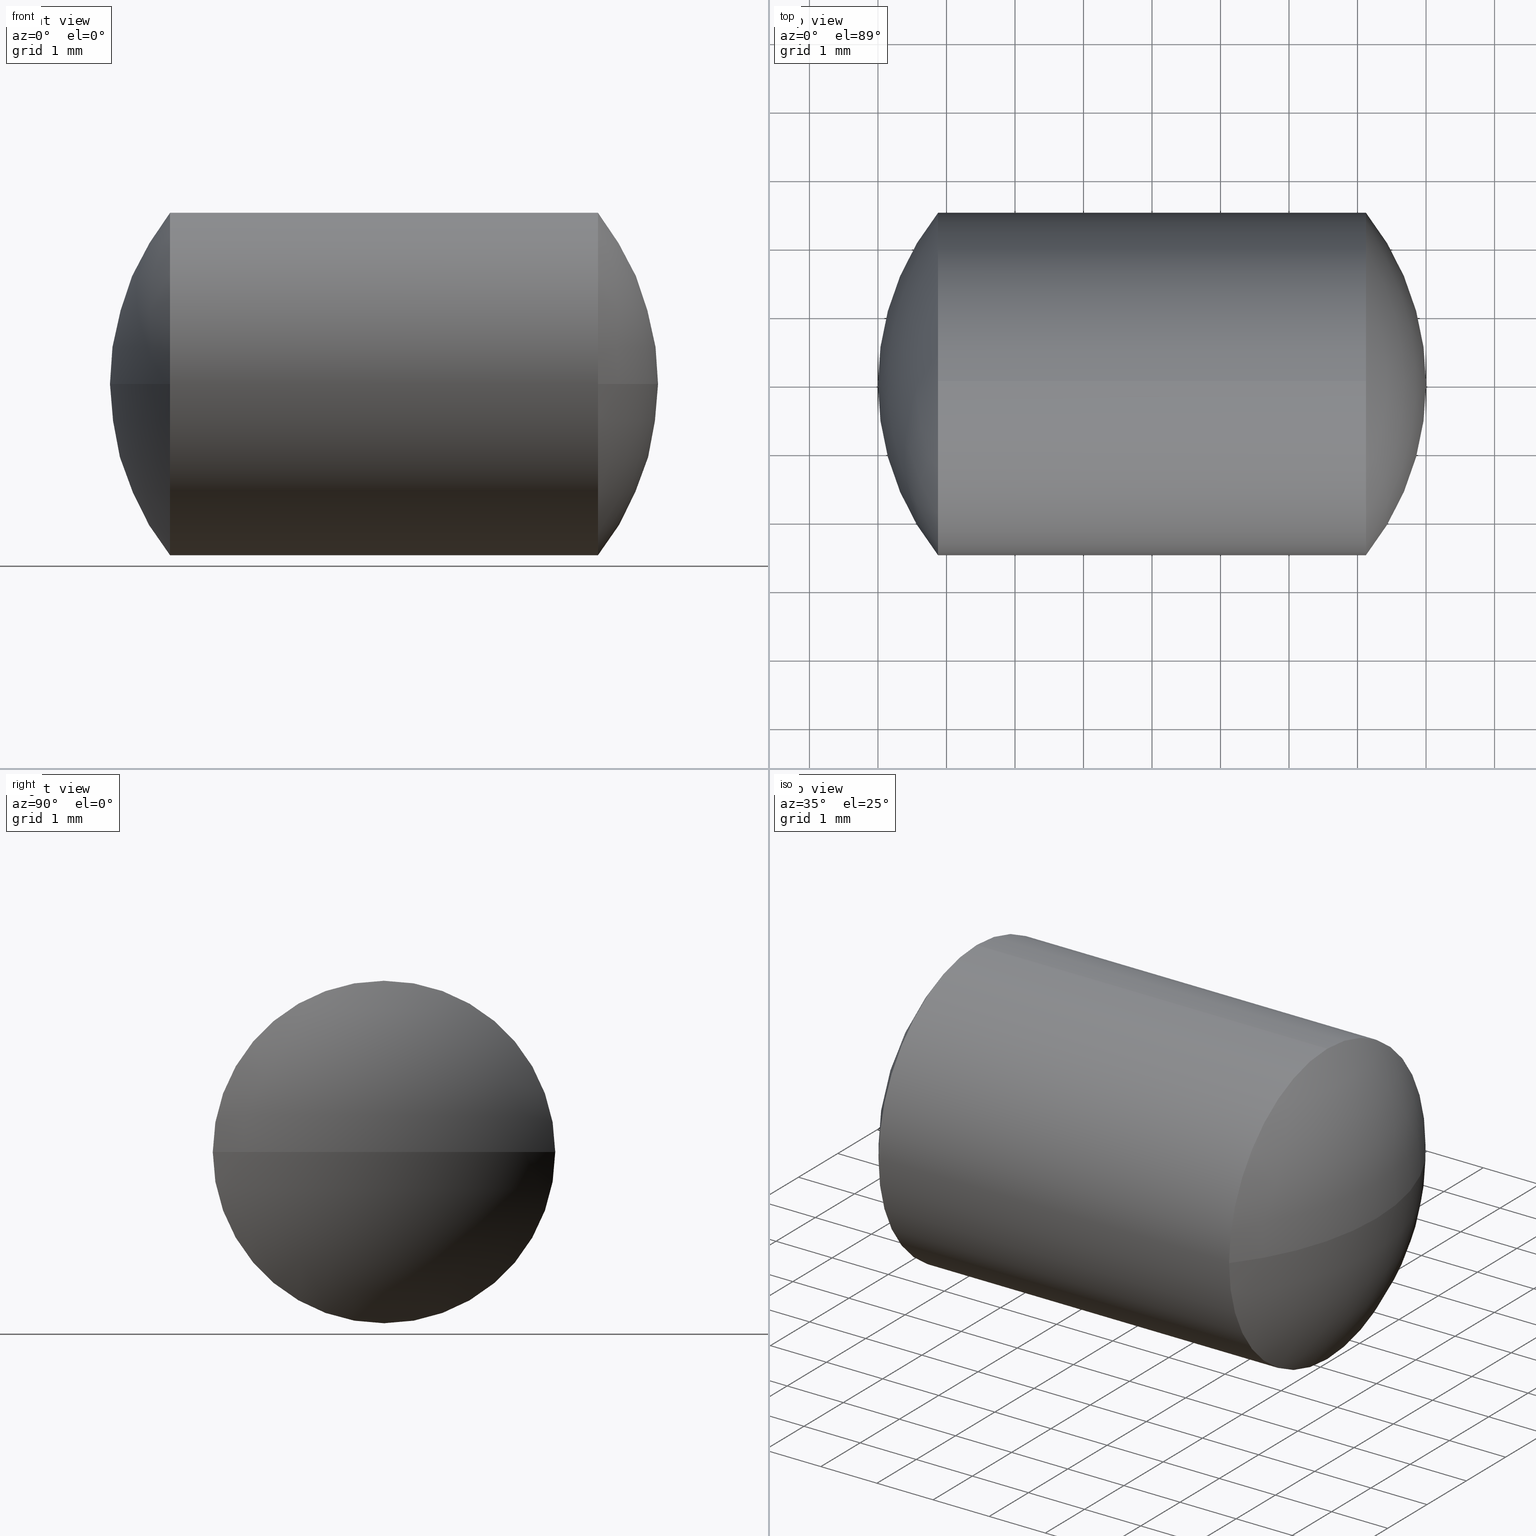
[diagram: canonical four-view strip — front | top / right | iso, engineering-drawing reading convention]
A machine part, canonical four-view strip (front | top / right | iso — engineering-drawing reading convention). The complete STEP part file that produces these views, byte-faithful:
ISO-10303-21;
HEADER;
FILE_DESCRIPTION (( 'STEP AP203' ),
    '1' );
FILE_NAME ('165004.STEP',
    '2019-06-04T02:33:23',
    ( '' ),
    ( '' ),
    'SwSTEP 2.0',
    'SolidWorks 2016',
    '' );
FILE_SCHEMA (( 'CONFIG_CONTROL_DESIGN' ));
ENDSEC;

DATA;
#1 = DIRECTION ( 'NONE',  ( 0.0000000000000000000, 0.0000000000000000000, 1.000000000000000000 ) ) ;
#2 = COORDINATED_UNIVERSAL_TIME_OFFSET ( 8, 0, .AHEAD. ) ;
#3 = AXIS2_PLACEMENT_3D ( 'NONE', #55, #289, #288 ) ;
#4 = CIRCLE ( 'NONE', #198, 2.499493842869673800 ) ;
#5 = VERTEX_POINT ( 'NONE', #229 ) ;
#6 = DIRECTION ( 'NONE',  ( -0.0000000000000000000, 0.0000000000000000000, -1.000000000000000000 ) ) ;
#7 = CC_DESIGN_SECURITY_CLASSIFICATION ( #148, ( #109 ) ) ;
#8 =( LENGTH_UNIT ( ) NAMED_UNIT ( * ) SI_UNIT ( .MILLI., .METRE. ) );
#9 = FACE_OUTER_BOUND ( 'NONE', #184, .T. ) ;
#10 = VERTEX_POINT ( 'NONE', #256 ) ;
#11 = EDGE_CURVE ( 'NONE', #276, #92, #101, .T. ) ;
#12 = CARTESIAN_POINT ( 'NONE',  ( -3.122904181920511700, 0.0000000000000000000, 0.0000000000000000000 ) ) ;
#13 = CARTESIAN_POINT ( 'NONE',  ( 3.122904181920509900, 2.499493842869675600, 0.0000000000000000000 ) ) ;
#14 = DATE_AND_TIME ( #189, #161 ) ;
#15 = APPLICATION_PROTOCOL_DEFINITION ( 'international standard', 'config_control_design', 1994, #331 ) ;
#16 = CC_DESIGN_SECURITY_CLASSIFICATION ( #19, ( #129 ) ) ;
#17 = SPHERICAL_SURFACE ( 'NONE', #145, 4.000000000000003600 ) ;
#18 = APPROVAL_STATUS ( 'not_yet_approved' ) ;
#19 = SECURITY_CLASSIFICATION ( '', '', #63 ) ;
#20 = DATE_AND_TIME ( #90, #151 ) ;
#21 = SPHERICAL_SURFACE ( 'NONE', #286, 4.000000000000003600 ) ;
#22 = EDGE_CURVE ( 'NONE', #209, #116, #279, .T. ) ;
#23 = CC_DESIGN_APPROVAL ( #123, ( #129 ) ) ;
#24 = PERSON_AND_ORGANIZATION ( #194, #141 ) ;
#25 = EDGE_LOOP ( 'NONE', ( #131, #59, #233, #186 ) ) ;
#26 = APPROVAL ( #267, 'δָ��' ) ;
#27 = DIRECTION ( 'NONE',  ( 0.0000000000000000000, 1.000000000000000000, 0.0000000000000000000 ) ) ;
#28 = LOCAL_TIME ( 10, 33, 23.00000000000000000, #236 ) ;
#29 = CARTESIAN_POINT ( 'NONE',  ( -3.122904181920511700, 0.0000000000000000000, 0.0000000000000000000 ) ) ;
#30 = DIRECTION ( 'NONE',  ( 0.0000000000000000000, 1.000000000000000000, 0.0000000000000000000 ) ) ;
#31 = CARTESIAN_POINT ( 'NONE',  ( -4.636041519915886900, 3.060997134158864300E-016, -2.499493842869674700 ) ) ;
#32 = CARTESIAN_POINT ( 'NONE',  ( -3.122904181920511700, 0.0000000000000000000, 0.0000000000000000000 ) ) ;
#33 = PERSON_AND_ORGANIZATION ( #194, #141 ) ;
#34 = DIRECTION ( 'NONE',  ( 0.0000000000000000000, 0.0000000000000000000, 1.000000000000000000 ) ) ;
#35 = APPLICATION_CONTEXT ( 'configuration controlled 3d designs of mechanical parts and assemblies' ) ;
#36 = MECHANICAL_CONTEXT ( 'NONE', #35, 'mechanical' ) ;
#37 = SHAPE_DEFINITION_REPRESENTATION ( #199, #257 ) ;
#38 = ADVANCED_FACE ( 'NONE', ( #39 ), #17, .T. ) ;
#39 = FACE_OUTER_BOUND ( 'NONE', #343, .T. ) ;
#40 = VERTEX_POINT ( 'NONE', #195 ) ;
#41 = CC_DESIGN_APPROVAL ( #287, ( #167 ) ) ;
#42 = APPROVAL_STATUS ( 'not_yet_approved' ) ;
#43 = ADVANCED_FACE ( 'NONE', ( #253 ), #309, .T. ) ;
#44 = APPROVAL_STATUS ( 'not_yet_approved' ) ;
#45 = PRODUCT_DEFINITION ( 'δ֪', '', #109, #278 ) ;
#46 = ADVANCED_FACE ( 'NONE', ( #9 ), #68, .T. ) ;
#47 = PERSON_AND_ORGANIZATION ( #194, #141 ) ;
#48 = AXIS2_PLACEMENT_3D ( 'NONE', #58, #291, #102 ) ;
#49 = CYLINDRICAL_SURFACE ( 'NONE', #180, 2.499493842869674700 ) ;
#50 = LOCAL_TIME ( 10, 33, 23.00000000000000000, #175 ) ;
#51 = DIRECTION ( 'NONE',  ( 0.0000000000000000000, 0.0000000000000000000, 1.000000000000000000 ) ) ;
#52 = CARTESIAN_POINT ( 'NONE',  ( 0.0000000000000000000, 0.0000000000000000000, 0.0000000000000000000 ) ) ;
#53 = DIRECTION ( 'NONE',  ( -0.0000000000000000000, 0.0000000000000000000, 1.000000000000000000 ) ) ;
#54 = CC_DESIGN_DATE_AND_TIME_ASSIGNMENT ( #230, #66, ( #167 ) ) ;
#55 = CARTESIAN_POINT ( 'NONE',  ( 0.0000000000000000000, 0.0000000000000000000, 0.0000000000000000000 ) ) ;
#56 = DIRECTION ( 'NONE',  ( 0.0000000000000000000, 1.224646799147353200E-016, -1.000000000000000000 ) ) ;
#57 = APPROVAL_PERSON_ORGANIZATION ( #76, #171, #182 ) ;
#58 = CARTESIAN_POINT ( 'NONE',  ( 3.122904181920509900, 0.0000000000000000000, 0.0000000000000000000 ) ) ;
#59 = ORIENTED_EDGE ( 'NONE', *, *, #270, .T. ) ;
#60 = DIRECTION ( 'NONE',  ( 0.0000000000000000000, 0.0000000000000000000, 1.000000000000000000 ) ) ;
#61 = AXIS2_PLACEMENT_3D ( 'NONE', #322, #56, #62 ) ;
#62 = DIRECTION ( 'NONE',  ( 0.0000000000000000000, 1.000000000000000000, 1.224646799147353500E-016 ) ) ;
#63 = SECURITY_CLASSIFICATION_LEVEL ( 'unclassified' ) ;
#64 = APPROVAL_DATE_TIME ( #274, #287 ) ;
#65 = CIRCLE ( 'NONE', #244, 2.499493842869675600 ) ;
#66 = DATE_TIME_ROLE ( 'creation_date' ) ;
#67 = APPROVAL_STATUS ( 'not_yet_approved' ) ;
#68 = CYLINDRICAL_SURFACE ( 'NONE', #293, 2.499493842869674700 ) ;
#69 = CC_DESIGN_PERSON_AND_ORGANIZATION_ASSIGNMENT ( #222, #210, ( #167 ) ) ;
#70 = SPHERICAL_SURFACE ( 'NONE', #260, 4.000000000000003600 ) ;
#71 = ORIENTED_EDGE ( 'NONE', *, *, #307, .T. ) ;
#72 = CC_DESIGN_APPROVAL ( #26, ( #109 ) ) ;
#73 = ORIENTED_EDGE ( 'NONE', *, *, #290, .T. ) ;
#74 = AXIS2_PLACEMENT_3D ( 'NONE', #261, #206, #34 ) ;
#75 = DIRECTION ( 'NONE',  ( 0.0000000000000000000, 1.000000000000000000, 0.0000000000000000000 ) ) ;
#76 = PERSON_AND_ORGANIZATION ( #194, #141 ) ;
#77 = CIRCLE ( 'NONE', #74, 2.499493842869675600 ) ;
#78 = DIRECTION ( 'NONE',  ( -1.000000000000000000, -0.0000000000000000000, -0.0000000000000000000 ) ) ;
#79 = DIRECTION ( 'NONE',  ( 0.0000000000000000000, 0.0000000000000000000, 1.000000000000000000 ) ) ;
#80 = DIRECTION ( 'NONE',  ( -0.0000000000000000000, 0.0000000000000000000, -1.000000000000000000 ) ) ;
#81 = DIRECTION ( 'NONE',  ( -1.000000000000000000, -0.0000000000000000000, -0.0000000000000000000 ) ) ;
#82 = CARTESIAN_POINT ( 'NONE',  ( 0.0000000000000000000, 0.0000000000000000000, 0.0000000000000000000 ) ) ;
#83 = CC_DESIGN_APPROVAL ( #254, ( #148 ) ) ;
#84 = CALENDAR_DATE ( 2019, 4, 6 ) ;
#85 = CIRCLE ( 'NONE', #221, 2.499493842869673800 ) ;
#86 = DATE_TIME_ROLE ( 'creation_date' ) ;
#87 = EDGE_CURVE ( 'NONE', #209, #40, #190, .T. ) ;
#88 = VECTOR ( 'NONE', #99, 1000.000000000000000 ) ;
#89 = PRODUCT_RELATED_PRODUCT_CATEGORY ( 'detail', '', ( #98 ) ) ;
#90 = CALENDAR_DATE ( 2019, 4, 6 ) ;
#91 = AXIS2_PLACEMENT_3D ( 'NONE', #12, #176, #152 ) ;
#92 = VERTEX_POINT ( 'NONE', #345 ) ;
#93 = CC_DESIGN_PERSON_AND_ORGANIZATION_ASSIGNMENT ( #337, #133, ( #109 ) ) ;
#94 = APPROVAL_DATE_TIME ( #158, #213 ) ;
#95 = EDGE_LOOP ( 'NONE', ( #96, #71, #327, #162 ) ) ;
#96 = ORIENTED_EDGE ( 'NONE', *, *, #188, .F. ) ;
#97 = CC_DESIGN_PERSON_AND_ORGANIZATION_ASSIGNMENT ( #283, #217, ( #148 ) ) ;
#98 = PRODUCT ( '165004', '165004', '', ( #246 ) ) ;
#99 = DIRECTION ( 'NONE',  ( -1.000000000000000000, -0.0000000000000000000, -0.0000000000000000000 ) ) ;
#100 = LOCAL_TIME ( 10, 33, 23.00000000000000000, #334 ) ;
#101 = LINE ( 'NONE', #282, #88 ) ;
#102 = DIRECTION ( 'NONE',  ( 0.0000000000000000000, 0.0000000000000000000, 1.000000000000000000 ) ) ;
#103 = DIRECTION ( 'NONE',  ( 0.0000000000000000000, 1.224646799147353200E-016, -1.000000000000000000 ) ) ;
#104 = CC_DESIGN_PERSON_AND_ORGANIZATION_ASSIGNMENT ( #118, #299, ( #129 ) ) ;
#105 = DATE_AND_TIME ( #301, #28 ) ;
#106 = EDGE_LOOP ( 'NONE', ( #303, #165, #239, #316, #185, #268 ) ) ;
#107 = PERSON_AND_ORGANIZATION_ROLE ( 'design_owner' ) ;
#108 = PERSON_AND_ORGANIZATION_ROLE ( 'creator' ) ;
#109 = PRODUCT_DEFINITION_FORMATION_WITH_SPECIFIED_SOURCE ( '�κ�', '', #321, .NOT_KNOWN. ) ;
#110 = DATE_TIME_ROLE ( 'classification_date' ) ;
#111 = ORIENTED_EDGE ( 'NONE', *, *, #290, .F. ) ;
#112 = ADVANCED_FACE ( 'NONE', ( #342 ), #49, .T. ) ;
#113 = PERSON_AND_ORGANIZATION_ROLE ( 'creator' ) ;
#114 = CALENDAR_DATE ( 2019, 4, 6 ) ;
#115 = ORIENTED_EDGE ( 'NONE', *, *, #136, .T. ) ;
#116 = VERTEX_POINT ( 'NONE', #317 ) ;
#117 = LOCAL_TIME ( 10, 33, 23.00000000000000000, #130 ) ;
#118 = PERSON_AND_ORGANIZATION ( #194, #141 ) ;
#119 = EDGE_CURVE ( 'NONE', #335, #5, #296, .T. ) ;
#120 = VECTOR ( 'NONE', #202, 1000.000000000000000 ) ;
#121 = ORIENTED_EDGE ( 'NONE', *, *, #169, .F. ) ;
#122 = PERSON_AND_ORGANIZATION ( #194, #141 ) ;
#123 = APPROVAL ( #67, 'δָ��' ) ;
#124 = DIRECTION ( 'NONE',  ( -1.000000000000000000, -0.0000000000000000000, -0.0000000000000000000 ) ) ;
#125 = DIRECTION ( 'NONE',  ( 0.0000000000000000000, 0.0000000000000000000, 1.000000000000000000 ) ) ;
#126 = PRODUCT_DEFINITION_SHAPE ( 'NONE', 'NONE',  #167 ) ;
#127 = CARTESIAN_POINT ( 'NONE',  ( -4.636041519915886900, 0.0000000000000000000, 0.0000000000000000000 ) ) ;
#128 = DATE_AND_TIME ( #304, #341 ) ;
#129 = PRODUCT_DEFINITION_FORMATION_WITH_SPECIFIED_SOURCE ( '�κ�', '', #98, .NOT_KNOWN. ) ;
#130 = COORDINATED_UNIVERSAL_TIME_OFFSET ( 8, 0, .AHEAD. ) ;
#131 = ORIENTED_EDGE ( 'NONE', *, *, #22, .T. ) ;
#132 = COORDINATED_UNIVERSAL_TIME_OFFSET ( 8, 0, .AHEAD. ) ;
#133 = PERSON_AND_ORGANIZATION_ROLE ( 'design_supplier' ) ;
#134 = PERSON_AND_ORGANIZATION_ROLE ( 'classification_officer' ) ;
#135 = CC_DESIGN_DATE_AND_TIME_ASSIGNMENT ( #137, #110, ( #19 ) ) ;
#136 = EDGE_CURVE ( 'NONE', #10, #344, #183, .T. ) ;
#137 = DATE_AND_TIME ( #208, #320 ) ;
#138 = UNCERTAINTY_MEASURE_WITH_UNIT (LENGTH_MEASURE( 1.000000000000000100E-005 ), #8, 'distance_accuracy_value', 'NONE');
#139 = DIRECTION ( 'NONE',  ( -0.0000000000000000000, 0.0000000000000000000, -1.000000000000000000 ) ) ;
#140 = DIRECTION ( 'NONE',  ( 1.000000000000000000, 0.0000000000000000000, 0.0000000000000000000 ) ) ;
#141 = ORGANIZATION ( 'δָ��', 'δָ��', '' ) ;
#142 = CIRCLE ( 'NONE', #48, 2.499493842869675600 ) ;
#143 = CC_DESIGN_DATE_AND_TIME_ASSIGNMENT ( #105, #86, ( #45 ) ) ;
#144 = DIRECTION ( 'NONE',  ( -1.000000000000000000, -0.0000000000000000000, -0.0000000000000000000 ) ) ;
#145 = AXIS2_PLACEMENT_3D ( 'NONE', #280, #139, #75 ) ;
#146 = CARTESIAN_POINT ( 'NONE',  ( -3.122904181920511700, 0.0000000000000000000, 0.0000000000000000000 ) ) ;
#147 = LOCAL_TIME ( 10, 33, 23.00000000000000000, #2 ) ;
#148 = SECURITY_CLASSIFICATION ( '', '', #302 ) ;
#149 = DIRECTION ( 'NONE',  ( 0.0000000000000000000, 1.000000000000000000, 0.0000000000000000000 ) ) ;
#150 = APPROVAL_PERSON_ORGANIZATION ( #294, #254, #155 ) ;
#151 = LOCAL_TIME ( 10, 33, 23.00000000000000000, #227 ) ;
#152 = DIRECTION ( 'NONE',  ( 0.0000000000000000000, 0.0000000000000000000, 1.000000000000000000 ) ) ;
#153 = EDGE_LOOP ( 'NONE', ( #250, #73, #237, #192 ) ) ;
#154 = DIRECTION ( 'NONE',  ( 1.000000000000000000, 0.0000000000000000000, 0.0000000000000000000 ) ) ;
#155 = APPROVAL_ROLE ( '' ) ;
#156 = AXIS2_PLACEMENT_3D ( 'NONE', #82, #264, #154 ) ;
#157 = APPROVAL_ROLE ( '' ) ;
#158 = DATE_AND_TIME ( #248, #50 ) ;
#159 = CIRCLE ( 'NONE', #3, 4.000000000000003600 ) ;
#160 = APPROVAL_ROLE ( '' ) ;
#161 = LOCAL_TIME ( 10, 33, 23.00000000000000000, #243 ) ;
#162 = ORIENTED_EDGE ( 'NONE', *, *, #87, .T. ) ;
#163 = AXIS2_PLACEMENT_3D ( 'NONE', #318, #144, #1 ) ;
#164 = APPROVAL_DATE_TIME ( #14, #171 ) ;
#165 = ORIENTED_EDGE ( 'NONE', *, *, #169, .T. ) ;
#166 = PERSON_AND_ORGANIZATION ( #194, #141 ) ;
#167 = PRODUCT_DEFINITION ( 'δ֪', '', #129, #216 ) ;
#168 = PERSON_AND_ORGANIZATION ( #194, #141 ) ;
#169 = EDGE_CURVE ( 'NONE', #5, #344, #142, .T. ) ;
#170 = APPROVAL_PERSON_ORGANIZATION ( #339, #123, #160 ) ;
#171 = APPROVAL ( #300, 'δָ��' ) ;
#172 = CARTESIAN_POINT ( 'NONE',  ( -4.636041519915886900, 0.0000000000000000000, 0.0000000000000000000 ) ) ;
#173 =( NAMED_UNIT ( * ) PLANE_ANGLE_UNIT ( ) SI_UNIT ( $, .RADIAN. ) );
#174 = CARTESIAN_POINT ( 'NONE',  ( 0.0000000000000000000, 0.0000000000000000000, 0.0000000000000000000 ) ) ;
#175 = COORDINATED_UNIVERSAL_TIME_OFFSET ( 8, 0, .AHEAD. ) ;
#176 = DIRECTION ( 'NONE',  ( -1.000000000000000000, -0.0000000000000000000, -0.0000000000000000000 ) ) ;
#177 = DIRECTION ( 'NONE',  ( 1.000000000000000000, 0.0000000000000000000, 0.0000000000000000000 ) ) ;
#178 = LOCAL_TIME ( 10, 33, 23.00000000000000000, #266 ) ;
#179 = LINE ( 'NONE', #31, #120 ) ;
#180 = AXIS2_PLACEMENT_3D ( 'NONE', #127, #124, #312 ) ;
#181 = APPROVAL_ROLE ( '' ) ;
#182 = APPROVAL_ROLE ( '' ) ;
#183 = CIRCLE ( 'NONE', #336, 4.000000000000003600 ) ;
#184 = EDGE_LOOP ( 'NONE', ( #340, #197, #306, #224, #219, #297 ) ) ;
#185 = ORIENTED_EDGE ( 'NONE', *, *, #307, .F. ) ;
#186 = ORIENTED_EDGE ( 'NONE', *, *, #87, .F. ) ;
#187 = CC_DESIGN_PERSON_AND_ORGANIZATION_ASSIGNMENT ( #122, #214, ( #129 ) ) ;
#188 = EDGE_CURVE ( 'NONE', #203, #40, #232, .T. ) ;
#189 = CALENDAR_DATE ( 2019, 4, 6 ) ;
#190 = CIRCLE ( 'NONE', #315, 4.000000000000003600 ) ;
#191 = CC_DESIGN_APPROVAL ( #171, ( #19 ) ) ;
#192 = ORIENTED_EDGE ( 'NONE', *, *, #311, .F. ) ;
#193 = CARTESIAN_POINT ( 'NONE',  ( -3.122904181920511700, 2.499493842869673400, 0.0000000000000000000 ) ) ;
#194 = PERSON ( 'δָ��', 'δָ��', 'δָ��', ('δָ��'), ('δָ��'), ('δָ��') ) ;
#195 = CARTESIAN_POINT ( 'NONE',  ( -4.000000000000003600, 2.449293598294708900E-016, 0.0000000000000000000 ) ) ;
#196 = FACE_OUTER_BOUND ( 'NONE', #153, .T. ) ;
#197 = ORIENTED_EDGE ( 'NONE', *, *, #273, .T. ) ;
#198 = AXIS2_PLACEMENT_3D ( 'NONE', #29, #238, #234 ) ;
#199 = PRODUCT_DEFINITION_SHAPE ( 'NONE', 'NONE',  #45 ) ;
#200 = CARTESIAN_POINT ( 'NONE',  ( 0.0000000000000000000, 0.0000000000000000000, 0.0000000000000000000 ) ) ;
#201 = DATE_AND_TIME ( #324, #117 ) ;
#202 = DIRECTION ( 'NONE',  ( -1.000000000000000000, -0.0000000000000000000, -0.0000000000000000000 ) ) ;
#203 = VERTEX_POINT ( 'NONE', #263 ) ;
#204 = DIRECTION ( 'NONE',  ( 0.0000000000000000000, 1.000000000000000000, 1.224646799147353500E-016 ) ) ;
#205 = CC_DESIGN_DATE_AND_TIME_ASSIGNMENT ( #128, #329, ( #148 ) ) ;
#206 = DIRECTION ( 'NONE',  ( -1.000000000000000000, -0.0000000000000000000, -0.0000000000000000000 ) ) ;
#207 = CARTESIAN_POINT ( 'NONE',  ( 3.122904181920509900, 0.0000000000000000000, 0.0000000000000000000 ) ) ;
#208 = CALENDAR_DATE ( 2019, 4, 6 ) ;
#209 = VERTEX_POINT ( 'NONE', #193 ) ;
#210 = PERSON_AND_ORGANIZATION_ROLE ( 'creator' ) ;
#211 = ADVANCED_FACE ( 'NONE', ( #275 ), #21, .T. ) ;
#212 = APPROVAL_ROLE ( '' ) ;
#213 = APPROVAL ( #44, 'δָ��' ) ;
#214 = PERSON_AND_ORGANIZATION_ROLE ( 'creator' ) ;
#215 = EDGE_CURVE ( 'NONE', #276, #335, #77, .T. ) ;
#216 = DESIGN_CONTEXT ( 'detailed design', #331, 'design' ) ;
#217 = PERSON_AND_ORGANIZATION_ROLE ( 'classification_officer' ) ;
#218 = CALENDAR_DATE ( 2019, 4, 6 ) ;
#219 = ORIENTED_EDGE ( 'NONE', *, *, #11, .F. ) ;
#220 = AXIS2_PLACEMENT_3D ( 'NONE', #262, #333, #177 ) ;
#221 = AXIS2_PLACEMENT_3D ( 'NONE', #32, #81, #60 ) ;
#222 = PERSON_AND_ORGANIZATION ( #194, #141 ) ;
#223 = CIRCLE ( 'NONE', #91, 2.499493842869673800 ) ;
#224 = ORIENTED_EDGE ( 'NONE', *, *, #228, .F. ) ;
#225 = CC_DESIGN_PERSON_AND_ORGANIZATION_ASSIGNMENT ( #258, #298, ( #98 ) ) ;
#226 = CARTESIAN_POINT ( 'NONE',  ( 0.0000000000000000000, 0.0000000000000000000, 0.0000000000000000000 ) ) ;
#227 = COORDINATED_UNIVERSAL_TIME_OFFSET ( 8, 0, .AHEAD. ) ;
#228 = EDGE_CURVE ( 'NONE', #92, #209, #223, .T. ) ;
#229 = CARTESIAN_POINT ( 'NONE',  ( 3.122904181920509900, 3.060997134158865800E-016, -2.499493842869676000 ) ) ;
#230 = DATE_AND_TIME ( #114, #178 ) ;
#231 = DIRECTION ( 'NONE',  ( -1.000000000000000000, -0.0000000000000000000, -0.0000000000000000000 ) ) ;
#232 = CIRCLE ( 'NONE', #61, 4.000000000000003600 ) ;
#233 = ORIENTED_EDGE ( 'NONE', *, *, #188, .T. ) ;
#234 = DIRECTION ( 'NONE',  ( 0.0000000000000000000, 0.0000000000000000000, 1.000000000000000000 ) ) ;
#235 = APPROVAL_DATE_TIME ( #201, #254 ) ;
#236 = COORDINATED_UNIVERSAL_TIME_OFFSET ( 8, 0, .AHEAD. ) ;
#237 = ORIENTED_EDGE ( 'NONE', *, *, #215, .F. ) ;
#238 = DIRECTION ( 'NONE',  ( -1.000000000000000000, -0.0000000000000000000, -0.0000000000000000000 ) ) ;
#239 = ORIENTED_EDGE ( 'NONE', *, *, #311, .T. ) ;
#240 = CC_DESIGN_APPROVAL ( #213, ( #45 ) ) ;
#241 = APPLICATION_CONTEXT ( 'configuration controlled 3d designs of mechanical parts and assemblies' ) ;
#242 = APPLICATION_PROTOCOL_DEFINITION ( 'international standard', 'config_control_design', 1994, #241 ) ;
#243 = COORDINATED_UNIVERSAL_TIME_OFFSET ( 8, 0, .AHEAD. ) ;
#244 = AXIS2_PLACEMENT_3D ( 'NONE', #207, #78, #79 ) ;
#245 = APPLICATION_PROTOCOL_DEFINITION ( 'international standard', 'config_control_design', 1994, #35 ) ;
#246 = MECHANICAL_CONTEXT ( 'NONE', #269, 'mechanical' ) ;
#247 = APPROVAL_DATE_TIME ( #20, #26 ) ;
#248 = CALENDAR_DATE ( 2019, 4, 6 ) ;
#249 = CC_DESIGN_PERSON_AND_ORGANIZATION_ASSIGNMENT ( #308, #134, ( #19 ) ) ;
#250 = ORIENTED_EDGE ( 'NONE', *, *, #136, .F. ) ;
#251 = AXIS2_PLACEMENT_3D ( 'NONE', #146, #231, #51 ) ;
#252 = APPROVAL_DATE_TIME ( #330, #123 ) ;
#253 = FACE_OUTER_BOUND ( 'NONE', #95, .T. ) ;
#254 = APPROVAL ( #42, 'δָ��' ) ;
#255 = APPROVAL_PERSON_ORGANIZATION ( #24, #213, #157 ) ;
#256 = CARTESIAN_POINT ( 'NONE',  ( 4.000000000000003600, 2.449293598294708900E-016, 0.0000000000000000000 ) ) ;
#257 = ADVANCED_BREP_SHAPE_REPRESENTATION ( '165004', ( #272, #220 ), #277 ) ;
#258 = PERSON_AND_ORGANIZATION ( #194, #141 ) ;
#259 = CLOSED_SHELL ( 'NONE', ( #46, #38, #211, #43, #271, #112 ) ) ;
#260 = AXIS2_PLACEMENT_3D ( 'NONE', #328, #326, #149 ) ;
#261 = CARTESIAN_POINT ( 'NONE',  ( 3.122904181920509900, 0.0000000000000000000, 0.0000000000000000000 ) ) ;
#262 = CARTESIAN_POINT ( 'NONE',  ( 0.0000000000000000000, 0.0000000000000000000, 0.0000000000000000000 ) ) ;
#263 = CARTESIAN_POINT ( 'NONE',  ( -3.122904181920511700, -2.499493842869673400, -3.060997134158862800E-016 ) ) ;
#264 = DIRECTION ( 'NONE',  ( 0.0000000000000000000, 0.0000000000000000000, 1.000000000000000000 ) ) ;
#265 = AXIS2_PLACEMENT_3D ( 'NONE', #52, #6, #27 ) ;
#266 = COORDINATED_UNIVERSAL_TIME_OFFSET ( 8, 0, .AHEAD. ) ;
#267 = APPROVAL_STATUS ( 'not_yet_approved' ) ;
#268 = ORIENTED_EDGE ( 'NONE', *, *, #270, .F. ) ;
#269 = APPLICATION_CONTEXT ( 'configuration controlled 3d designs of mechanical parts and assemblies' ) ;
#270 = EDGE_CURVE ( 'NONE', #116, #203, #85, .T. ) ;
#271 = ADVANCED_FACE ( 'NONE', ( #196 ), #70, .T. ) ;
#272 = MANIFOLD_SOLID_BREP ( '��ת1', #259 ) ;
#273 = EDGE_CURVE ( 'NONE', #5, #116, #179, .T. ) ;
#274 = DATE_AND_TIME ( #218, #100 ) ;
#275 = FACE_OUTER_BOUND ( 'NONE', #25, .T. ) ;
#276 = VERTEX_POINT ( 'NONE', #292 ) ;
#277 =( GEOMETRIC_REPRESENTATION_CONTEXT ( 3 ) GLOBAL_UNCERTAINTY_ASSIGNED_CONTEXT ( ( #138 ) ) GLOBAL_UNIT_ASSIGNED_CONTEXT ( ( #8, #173, #323 ) ) REPRESENTATION_CONTEXT ( 'NONE', 'WORKASPACE' ) );
#278 = DESIGN_CONTEXT ( 'detailed design', #241, 'design' ) ;
#279 = CIRCLE ( 'NONE', #251, 2.499493842869673800 ) ;
#280 = CARTESIAN_POINT ( 'NONE',  ( 0.0000000000000000000, 0.0000000000000000000, 0.0000000000000000000 ) ) ;
#281 = PRODUCT_RELATED_PRODUCT_CATEGORY ( 'detail', '', ( #321 ) ) ;
#282 = CARTESIAN_POINT ( 'NONE',  ( -4.636041519915886900, 0.0000000000000000000, 2.499493842869674700 ) ) ;
#283 = PERSON_AND_ORGANIZATION ( #194, #141 ) ;
#284 = PERSON_AND_ORGANIZATION ( #194, #141 ) ;
#285 = DIRECTION ( 'NONE',  ( -1.000000000000000000, -0.0000000000000000000, -0.0000000000000000000 ) ) ;
#286 = AXIS2_PLACEMENT_3D ( 'NONE', #174, #80, #30 ) ;
#287 = APPROVAL ( #18, 'δָ��' ) ;
#288 = DIRECTION ( 'NONE',  ( 1.000000000000000000, 0.0000000000000000000, 0.0000000000000000000 ) ) ;
#289 = DIRECTION ( 'NONE',  ( -0.0000000000000000000, 0.0000000000000000000, 1.000000000000000000 ) ) ;
#290 = EDGE_CURVE ( 'NONE', #10, #335, #159, .T. ) ;
#291 = DIRECTION ( 'NONE',  ( -1.000000000000000000, -0.0000000000000000000, -0.0000000000000000000 ) ) ;
#292 = CARTESIAN_POINT ( 'NONE',  ( 3.122904181920509900, 0.0000000000000000000, 2.499493842869676000 ) ) ;
#293 = AXIS2_PLACEMENT_3D ( 'NONE', #172, #285, #125 ) ;
#294 = PERSON_AND_ORGANIZATION ( #194, #141 ) ;
#295 = CARTESIAN_POINT ( 'NONE',  ( 3.122904181920509900, -2.499493842869675600, -3.060997134158865800E-016 ) ) ;
#296 = CIRCLE ( 'NONE', #163, 2.499493842869675600 ) ;
#297 = ORIENTED_EDGE ( 'NONE', *, *, #215, .T. ) ;
#298 = PERSON_AND_ORGANIZATION_ROLE ( 'design_owner' ) ;
#299 = PERSON_AND_ORGANIZATION_ROLE ( 'design_supplier' ) ;
#300 = APPROVAL_STATUS ( 'not_yet_approved' ) ;
#301 = CALENDAR_DATE ( 2019, 4, 6 ) ;
#302 = SECURITY_CLASSIFICATION_LEVEL ( 'unclassified' ) ;
#303 = ORIENTED_EDGE ( 'NONE', *, *, #273, .F. ) ;
#304 = CALENDAR_DATE ( 2019, 4, 6 ) ;
#305 = APPROVAL_PERSON_ORGANIZATION ( #47, #26, #181 ) ;
#306 = ORIENTED_EDGE ( 'NONE', *, *, #22, .F. ) ;
#307 = EDGE_CURVE ( 'NONE', #203, #92, #4, .T. ) ;
#308 = PERSON_AND_ORGANIZATION ( #194, #141 ) ;
#309 = SPHERICAL_SURFACE ( 'NONE', #265, 4.000000000000003600 ) ;
#310 = CC_DESIGN_PERSON_AND_ORGANIZATION_ASSIGNMENT ( #284, #107, ( #321 ) ) ;
#311 = EDGE_CURVE ( 'NONE', #344, #276, #65, .T. ) ;
#312 = DIRECTION ( 'NONE',  ( 0.0000000000000000000, 0.0000000000000000000, 1.000000000000000000 ) ) ;
#313 = COORDINATED_UNIVERSAL_TIME_OFFSET ( 8, 0, .AHEAD. ) ;
#314 = APPROVAL_PERSON_ORGANIZATION ( #33, #287, #212 ) ;
#315 = AXIS2_PLACEMENT_3D ( 'NONE', #226, #53, #140 ) ;
#316 = ORIENTED_EDGE ( 'NONE', *, *, #11, .T. ) ;
#317 = CARTESIAN_POINT ( 'NONE',  ( -3.122904181920511700, 3.060997134158863800E-016, -2.499493842869673800 ) ) ;
#318 = CARTESIAN_POINT ( 'NONE',  ( 3.122904181920509900, 0.0000000000000000000, 0.0000000000000000000 ) ) ;
#319 = CC_DESIGN_PERSON_AND_ORGANIZATION_ASSIGNMENT ( #166, #108, ( #109 ) ) ;
#320 = LOCAL_TIME ( 10, 33, 23.00000000000000000, #132 ) ;
#321 = PRODUCT ( '165004', '165004', '', ( #36 ) ) ;
#322 = CARTESIAN_POINT ( 'NONE',  ( 0.0000000000000000000, 0.0000000000000000000, 0.0000000000000000000 ) ) ;
#323 =( NAMED_UNIT ( * ) SI_UNIT ( $, .STERADIAN. ) SOLID_ANGLE_UNIT ( ) );
#324 = CALENDAR_DATE ( 2019, 4, 6 ) ;
#325 = ORIENTED_EDGE ( 'NONE', *, *, #119, .F. ) ;
#326 = DIRECTION ( 'NONE',  ( -0.0000000000000000000, 0.0000000000000000000, -1.000000000000000000 ) ) ;
#327 = ORIENTED_EDGE ( 'NONE', *, *, #228, .T. ) ;
#328 = CARTESIAN_POINT ( 'NONE',  ( 0.0000000000000000000, 0.0000000000000000000, 0.0000000000000000000 ) ) ;
#329 = DATE_TIME_ROLE ( 'classification_date' ) ;
#330 = DATE_AND_TIME ( #84, #147 ) ;
#331 = APPLICATION_CONTEXT ( 'configuration controlled 3d designs of mechanical parts and assemblies' ) ;
#332 = APPLICATION_PROTOCOL_DEFINITION ( 'international standard', 'config_control_design', 1994, #269 ) ;
#333 = DIRECTION ( 'NONE',  ( 0.0000000000000000000, 0.0000000000000000000, 1.000000000000000000 ) ) ;
#334 = COORDINATED_UNIVERSAL_TIME_OFFSET ( 8, 0, .AHEAD. ) ;
#335 = VERTEX_POINT ( 'NONE', #13 ) ;
#336 = AXIS2_PLACEMENT_3D ( 'NONE', #200, #103, #204 ) ;
#337 = PERSON_AND_ORGANIZATION ( #194, #141 ) ;
#338 = CC_DESIGN_PERSON_AND_ORGANIZATION_ASSIGNMENT ( #168, #113, ( #45 ) ) ;
#339 = PERSON_AND_ORGANIZATION ( #194, #141 ) ;
#340 = ORIENTED_EDGE ( 'NONE', *, *, #119, .T. ) ;
#341 = LOCAL_TIME ( 10, 33, 23.00000000000000000, #313 ) ;
#342 = FACE_OUTER_BOUND ( 'NONE', #106, .T. ) ;
#343 = EDGE_LOOP ( 'NONE', ( #111, #115, #121, #325 ) ) ;
#344 = VERTEX_POINT ( 'NONE', #295 ) ;
#345 = CARTESIAN_POINT ( 'NONE',  ( -3.122904181920511700, 0.0000000000000000000, 2.499493842869673800 ) ) ;
ENDSEC;
END-ISO-10303-21;
